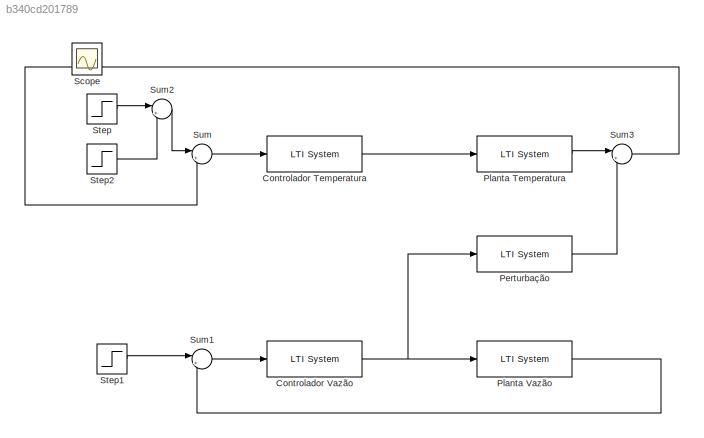
MODEL slx_b340cd201789
KIND model
CONFIG AbsTol = auto
CONFIG EnableMultiTasking = off
CONFIG FixedStep = auto
CONFIG MaxStep = auto
CONFIG MinStep = auto
CONFIG RelTol = 1e-3
CONFIG SampleTimeConstraint = Unconstrained
CONFIG SolverName = VariableStepAuto
CONFIG StartTime = 0.0
CONFIG StopTime = 20000
BLOCK [Reference] Controlador Temperatura  REF=cstblocks/LTI System
  Ports = [1, 1]
  SourceBlock = cstblocks/LTI System
  SourceProductBaseCode = CT
  SourceType = LTI Block
BLOCK [Reference] Controlador Vazão  REF=cstblocks/LTI System
  Ports = [1, 1]
  SourceBlock = cstblocks/LTI System
  SourceProductBaseCode = CT
  SourceType = LTI Block
BLOCK [Reference] Perturbação  REF=cstblocks/LTI System
  Ports = [1, 1]
  SourceBlock = cstblocks/LTI System
  SourceProductBaseCode = CT
  SourceType = LTI Block
BLOCK [Reference] Planta Temperatura  REF=cstblocks/LTI System
  Ports = [1, 1]
  SourceBlock = cstblocks/LTI System
  SourceProductBaseCode = CT
  SourceType = LTI Block
BLOCK [Reference] Planta Vazão  REF=cstblocks/LTI System
  Ports = [1, 1]
  SourceBlock = cstblocks/LTI System
  SourceProductBaseCode = CT
  SourceType = LTI Block
BLOCK [Scope] Scope
  Floating = off
  IOType = viewer
  NumInputPorts = 1
  Ports = []
  ScopeSpecificationString = Simulink.scopes.TimeScopeBlockCfg('CurrentConfiguration', extmgr.ConfigurationSet(extmgr.Configuration('Core','General UI',true,'FigureColor',[1 1 1]),extmgr.Configuration('Core','Source UI',true),extmgr.Configuration('Sources','WiredSimulink',true),extmgr.Configuration('Visuals','Time Domain',true,'SerializedDisplays',{struct('MinYLimReal','-13.21524','MaxYLimReal','24.58344','YLabelReal','','Min...<+2230ch>
BLOCK [Step] Step
  After = 20
  SampleTime = 0
BLOCK [Step] Step1
  After = 12
  SampleTime = 0
  Time = 6000
BLOCK [Step] Step2
  After = -15
  SampleTime = 0
  Time = 10000
BLOCK [Sum] Sum
  Inputs = |+-
  NameLocation = top
  Ports = [2, 1]
BLOCK [Sum] Sum1
  Inputs = |+-
  Ports = [2, 1]
BLOCK [Sum] Sum2
  Inputs = |++
  Ports = [2, 1]
BLOCK [Sum] Sum3
  Inputs = |++
  Ports = [2, 1]
LINE Controlador Temperatura:1 -> Planta Temperatura:1
NET Controlador Vazão:1 -> Perturbação:1, Planta Vazão:1
LINE Perturbação:1 -> Sum3:2
LINE Planta Temperatura:1 -> Sum3:1
LINE Planta Vazão:1 -> Sum1:2
LINE Step1:1 -> Sum1:1
LINE Step2:1 -> Sum2:2
LINE Step:1 -> Sum2:1
LINE Sum1:1 -> Controlador Vazão:1
LINE Sum2:1 -> Sum:1
LINE Sum3:1 -> Sum:2
LINE Sum:1 -> Controlador Temperatura:1
note: NET lines group one-source signal fan-out (src -> all destinations, sorted); 1:1 wires keep LINE
